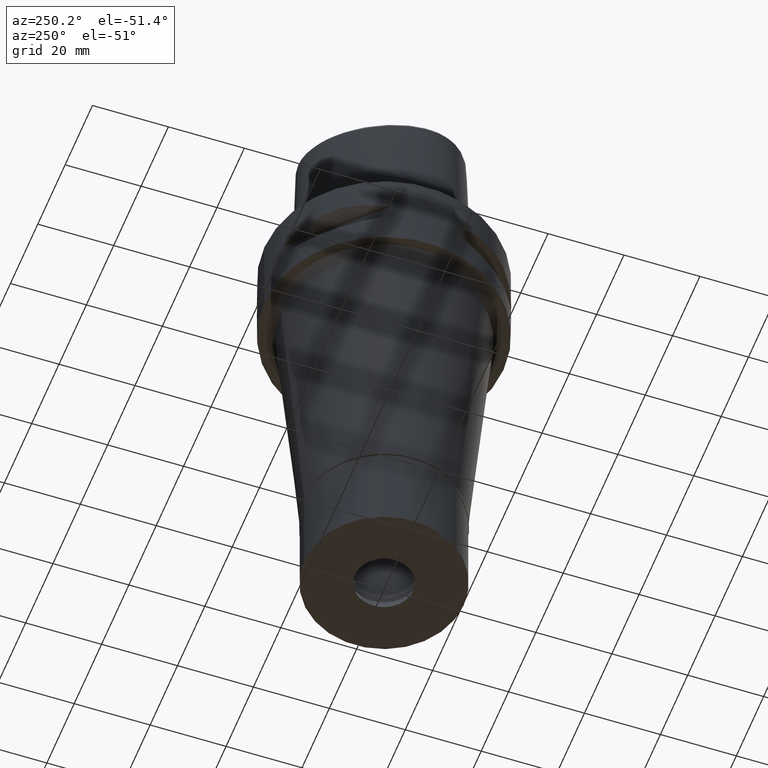
[diagram: clean part render]
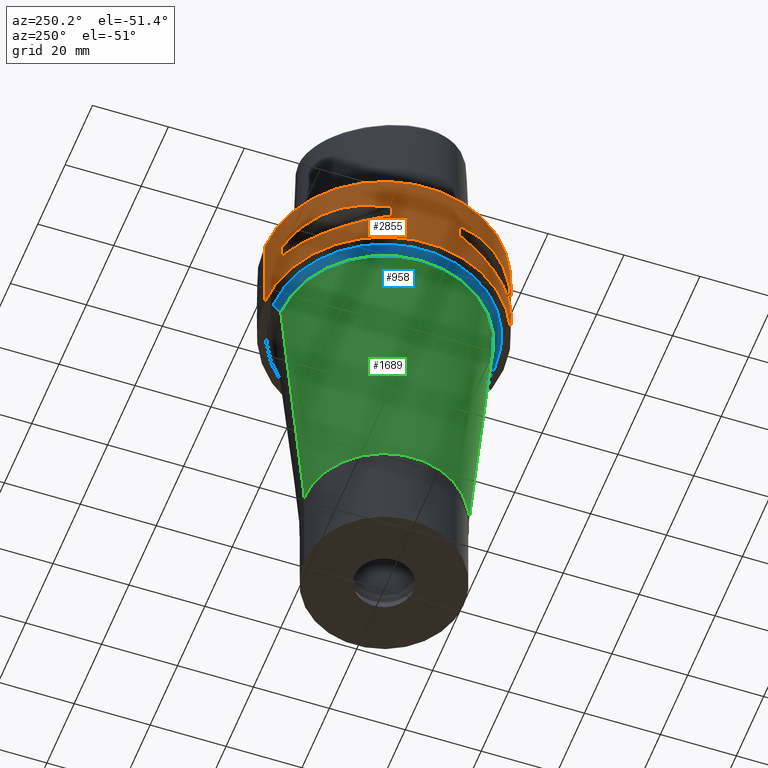
[diagram: same view with three faces highlighted in distinct colors, each labeled with its STEP entity id]
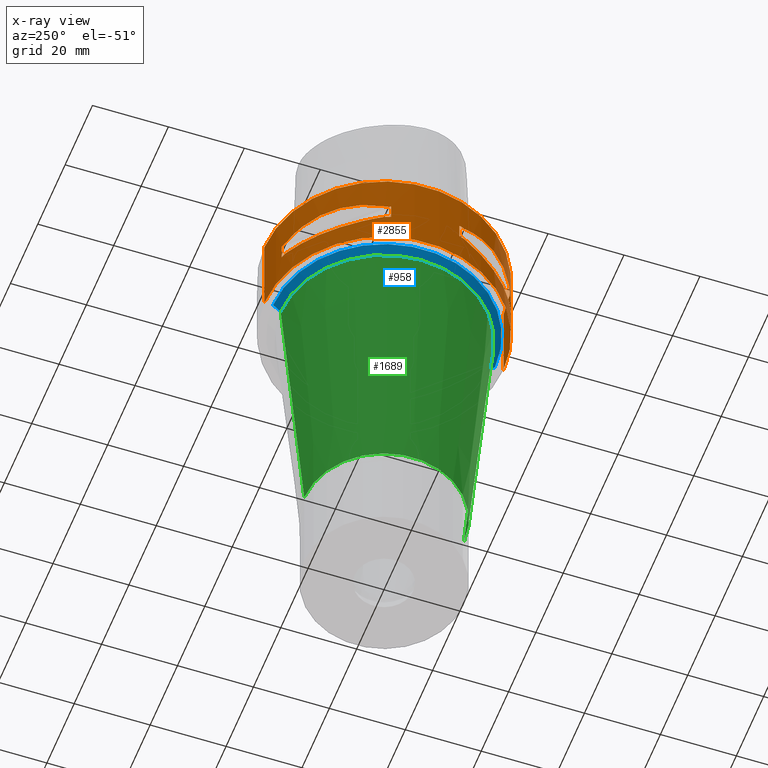
[diagram: x-ray of the same camera — body ghosted, the three highlighted faces saturated]
A machine part, auxiliary view with three faces highlighted in distinct colors.
The next image is the same camera in x-ray (body ghosted, the three faces saturated) — at least one of them is partly hidden behind the body in this view.
Their STEP definitions:

[orange] entity #2855 — the highlighted cylindrical surface (partial cylindrical patch) has radius 31.5 mm, axis along (0, 0, -1).
#7 = CARTESIAN_POINT ( 'NONE',  ( -27.64634172017658642, -15.11986997311774417, -15.11207862404057423 ) ) ;
#46 = AXIS2_PLACEMENT_3D ( 'NONE', #3965, #152, #2873 ) ;
#61 = CARTESIAN_POINT ( 'NONE',  ( -8.981198972019999616, 30.19251670572000279, -9.950000000000001066 ) ) ;
#132 = AXIS2_PLACEMENT_3D ( 'NONE', #688, #1419, #3769 ) ;
#133 = ORIENTED_EDGE ( 'NONE', *, *, #4027, .F. ) ;
#135 = CIRCLE ( 'NONE', #4660, 31.50000000000001776 ) ;
#152 = DIRECTION ( 'NONE',  ( 0.0000000000000000000, 0.0000000000000000000, 1.000000000000000000 ) ) ;
#153 = VERTEX_POINT ( 'NONE', #4197 ) ;
#192 = CIRCLE ( 'NONE', #3004, 31.50000000000000711 ) ;
#242 = CARTESIAN_POINT ( 'NONE',  ( -12.73197616787516040, 28.91382665369138749, -9.345326382460914516 ) ) ;
#256 = EDGE_CURVE ( 'NONE', #4445, #1264, #2350, .T. ) ;
#258 = CARTESIAN_POINT ( 'NONE',  ( -30.19251670572000279, 8.981198972017999438, -14.05000000000000071 ) ) ;
#289 = CARTESIAN_POINT ( 'NONE',  ( -11.58970337495283864, -29.31542262584386904, -9.647706428326454642 ) ) ;
#315 = CARTESIAN_POINT ( 'NONE',  ( -20.65093790437828858, -23.89673728052539659, -8.160641950984063087 ) ) ;
#362 = CARTESIAN_POINT ( 'NONE',  ( -18.86897208075099996, 25.32725744466366891, -15.69588095933659488 ) ) ;
#364 = DIRECTION ( 'NONE',  ( 0.0000000000000000000, 0.0000000000000000000, 1.000000000000000000 ) ) ;
#370 = CARTESIAN_POINT ( 'NONE',  ( -10.44775724750000023, -29.71690375017999841, -9.949999999998999201 ) ) ;
#393 = CARTESIAN_POINT ( 'NONE',  ( -16.86571563436660171, 26.60451452154748608, -15.39949295786010097 ) ) ;
#418 = CARTESIAN_POINT ( 'NONE',  ( -16.03138450078630584, 27.11872488589149199, -15.26880420107739234 ) ) ;
#476 = EDGE_CURVE ( 'NONE', #1857, #3933, #2117, .T. ) ;
#480 = CARTESIAN_POINT ( 'NONE',  ( -16.70616724745912407, 26.70521063584489596, -15.37546661817712490 ) ) ;
#515 = CARTESIAN_POINT ( 'NONE',  ( 0.0000000000000000000, 0.0000000000000000000, -14.05000000000000071 ) ) ;
#537 = DIRECTION ( 'NONE',  ( -0.3316748332540863653, 0.9433937698468619626, 0.0000000000000000000 ) ) ;
#538 = CARTESIAN_POINT ( 'NONE',  ( -14.89252659056261052, -27.86285265926905197, -15.10765629751539230 ) ) ;
#576 = DIRECTION ( 'NONE',  ( 0.0000000000000000000, 0.0000000000000000000, -1.000000000000000000 ) ) ;
#584 = CARTESIAN_POINT ( 'NONE',  ( -26.84474411198721455, 16.48208282229338195, -8.659051162216787390 ) ) ;
#605 = VECTOR ( 'NONE', #3287, 1000.000000000000000 ) ;
#613 = VECTOR ( 'NONE', #1526, 1000.000000000000000 ) ;
#614 = ORIENTED_EDGE ( 'NONE', *, *, #4605, .F. ) ;
#685 = VERTEX_POINT ( 'NONE', #1686 ) ;
#688 = CARTESIAN_POINT ( 'NONE',  ( 0.0000000000000000000, 0.0000000000000000000, 0.0000000000000000000 ) ) ;
#702 = CARTESIAN_POINT ( 'NONE',  ( -16.48208282229338195, -26.84474411198721455, -8.659051162216787390 ) ) ;
#711 = CARTESIAN_POINT ( 'NONE',  ( -20.18579225686149314, -24.23018836745477245, -15.78559396979075125 ) ) ;
#719 = B_SPLINE_CURVE_WITH_KNOTS ( 'NONE', 3,
 ( #370, #289, #1112, #1920, #1141, #702, #2306, #1949, #3054, #3108, #2704, #315, #1537, #3875, #3801, #3408, #4263, #1505, #3035, #5042, #3823, #4186, #728, #5098 ),
 .UNSPECIFIED., .F., .F.,
 ( 4, 1, 1, 1, 1, 1, 2, 2, 2, 1, 1, 1, 1, 1, 2, 2, 4 ),
 ( 0.0000000000000000000, 0.1249999999999937828, 0.1874999999999907296, 0.2187499999999890365, 0.2343749999999882316, 0.2421874999999878431, 0.2460937499999878708, 0.2499999999999878986, 0.4999999999999847899, 0.6249999999999832356, 0.6874999999999825695, 0.7187499999999821254, 0.7343749999999817923, 0.7421874999999815703, 0.7460937499999819034, 0.7499999999999821254, 1.000000000000000000 ),
 .UNSPECIFIED. ) ;
#728 = CARTESIAN_POINT ( 'NONE',  ( -28.91382665369138749, -12.73197616787516040, -9.345326382460914516 ) ) ;
#730 = FACE_BOUND ( 'NONE', #1960, .T. ) ;
#739 = EDGE_LOOP ( 'NONE', ( #4177, #2192, #3481, #1980, #3371, #1665, #3464, #133 ) ) ;
#746 = DIRECTION ( 'NONE',  ( -0.9584925938322735872, -0.2851174276831918153, 0.0000000000000000000 ) ) ;
#762 = EDGE_LOOP ( 'NONE', ( #2632, #5116, #985, #795 ) ) ;
#795 = ORIENTED_EDGE ( 'NONE', *, *, #3547, .T. ) ;
#802 = DIRECTION ( 'NONE',  ( 0.0000000000000000000, 0.0000000000000000000, 1.000000000000000000 ) ) ;
#890 = DIRECTION ( 'NONE',  ( 0.0000000000000000000, 0.0000000000000000000, 1.000000000000000000 ) ) ;
#898 = CARTESIAN_POINT ( 'NONE',  ( -29.71690375017999841, 10.44775724750000023, -14.05000000000000071 ) ) ;
#902 = DIRECTION ( 'NONE',  ( 0.0000000000000000000, 0.0000000000000000000, -1.000000000000000000 ) ) ;
#923 = CARTESIAN_POINT ( 'NONE',  ( -17.14106442934748742, -26.42800887047532754, -15.43984550238493547 ) ) ;
#985 = ORIENTED_EDGE ( 'NONE', *, *, #256, .T. ) ;
#1000 = VERTEX_POINT ( 'NONE', #1585 ) ;
#1004 = VERTEX_POINT ( 'NONE', #61 ) ;
#1007 = EDGE_CURVE ( 'NONE', #4445, #3939, #2779, .T. ) ;
#1048 = CARTESIAN_POINT ( 'NONE',  ( -30.19251670572000279, -8.981198972019999616, -9.950000000000001066 ) ) ;
#1063 = CARTESIAN_POINT ( 'NONE',  ( -21.46242677079834138, 23.08532645887192203, -8.160610089341528095 ) ) ;
#1067 = CARTESIAN_POINT ( 'NONE',  ( -26.64486562695712379, -16.80193241490734835, -15.38992683735741451 ) ) ;
#1112 = CARTESIAN_POINT ( 'NONE',  ( -13.25636937905195722, -28.62019653468352942, -9.251117744580772850 ) ) ;
#1141 = CARTESIAN_POINT ( 'NONE',  ( -16.03138450079000776, -27.11872488589111541, -8.731195798919257456 ) ) ;
#1183 = CARTESIAN_POINT ( 'NONE',  ( -15.11986997310366299, 27.64634172018154246, -15.11207862403683144 ) ) ;
#1213 = CARTESIAN_POINT ( 'NONE',  ( -20.65093790435489396, 23.89673728056195756, -15.83935804901932087 ) ) ;
#1264 = VERTEX_POINT ( 'NONE', #2593 ) ;
#1267 = CARTESIAN_POINT ( 'NONE',  ( -24.23018836745557181, 20.18579225685711265, -15.78559396978928397 ) ) ;
#1281 = CARTESIAN_POINT ( 'NONE',  ( -29.71690375017999841, 10.44775724750000023, -9.949999999998999201 ) ) ;
#1320 = VERTEX_POINT ( 'NONE', #1048 ) ;
#1357 = CIRCLE ( 'NONE', #2183, 31.50000000000000000 ) ;
#1381 = LINE ( 'NONE', #1724, #605 ) ;
#1388 = CARTESIAN_POINT ( 'NONE',  ( 0.0000000000000000000, 0.0000000000000000000, -9.950000000000001066 ) ) ;
#1392 = B_SPLINE_CURVE_WITH_KNOTS ( 'NONE', 3,
 ( #3084, #1984, #3549, #7, #1879, #4608, #5025, #1067, #2657, #4631, #3463, #4212, #2681, #711, #2290, #2090, #4825, #923, #2509, #1707, #4068, #538, #3272, #3632 ),
 .UNSPECIFIED., .F., .F.,
 ( 4, 1, 1, 1, 1, 1, 2, 2, 2, 1, 1, 1, 1, 1, 2, 2, 4 ),
 ( 0.0000000000000000000, 0.1249999999999912292, 0.1874999999999869826, 0.2187499999999850120, 0.2343749999999839295, 0.2421874999999835409, 0.2460937499999835687, 0.2499999999999836242, 0.4999999999999924505, 0.6249999999999968914, 0.6874999999999992228, 0.7187500000000003331, 0.7343750000000009992, 0.7421875000000014433, 0.7460937500000016653, 0.7500000000000019984, 1.000000000000000000 ),
 .UNSPECIFIED. ) ;
#1419 = DIRECTION ( 'NONE',  ( 0.0000000000000000000, 0.0000000000000000000, -1.000000000000000000 ) ) ;
#1437 = CIRCLE ( 'NONE', #4733, 31.50000000000000711 ) ;
#1460 = CARTESIAN_POINT ( 'NONE',  ( -10.44775724750000023, 29.71690375017999841, -9.949999999998999201 ) ) ;
#1481 = FACE_OUTER_BOUND ( 'NONE', #762, .T. ) ;
#1505 = CARTESIAN_POINT ( 'NONE',  ( -26.42800887047403791, -17.14106442935189989, -8.560154497611819124 ) ) ;
#1526 = DIRECTION ( 'NONE',  ( 0.0000000000000000000, 0.0000000000000000000, 1.000000000000000000 ) ) ;
#1537 = CARTESIAN_POINT ( 'NONE',  ( -23.08532645887192203, -21.46242677079834138, -8.160610089341528095 ) ) ;
#1556 = CARTESIAN_POINT ( 'NONE',  ( -26.48642424310478205, 17.05047092244226903, -15.42670883407652305 ) ) ;
#1581 = CARTESIAN_POINT ( 'NONE',  ( -26.29071741523710060, 17.35163608579668804, -15.46976201925415317 ) ) ;
#1585 = CARTESIAN_POINT ( 'NONE',  ( -10.44775724750000023, 29.71690375017999841, -14.05000000000000071 ) ) ;
#1603 = DIRECTION ( 'NONE',  ( -0.9433937698468619626, -0.3316748332540863653, 0.0000000000000000000 ) ) ;
#1640 = CARTESIAN_POINT ( 'NONE',  ( -16.48208282229096611, 26.84474411198699784, -15.34094883778013596 ) ) ;
#1656 = CARTESIAN_POINT ( 'NONE',  ( 0.0000000000000000000, 0.0000000000000000000, -14.05000000000000071 ) ) ;
#1665 = ORIENTED_EDGE ( 'NONE', *, *, #3923, .F. ) ;
#1667 = CARTESIAN_POINT ( 'NONE',  ( -27.86285265926610322, 14.89252659057099493, -15.10765629751760031 ) ) ;
#1684 = VERTEX_POINT ( 'NONE', #2143 ) ;
#1686 = CARTESIAN_POINT ( 'NONE',  ( -10.44775724750000023, -29.71690375017999841, -14.05000000000000071 ) ) ;
#1693 = VERTEX_POINT ( 'NONE', #1758 ) ;
#1700 = AXIS2_PLACEMENT_3D ( 'NONE', #3678, #576, #3310 ) ;
#1707 = CARTESIAN_POINT ( 'NONE',  ( -16.98999780422078132, -26.52527364208593141, -15.41788098766319060 ) ) ;
#1724 = CARTESIAN_POINT ( 'NONE',  ( -8.981198972017999438, 30.19251670572000279, -9.950000000000001066 ) ) ;
#1732 = CARTESIAN_POINT ( 'NONE',  ( 0.0000000000000000000, -31.50000000000000000, -22.00000000000000000 ) ) ;
#1758 = CARTESIAN_POINT ( 'NONE',  ( -29.71690375017999841, -10.44775724750000023, -9.949999999998999201 ) ) ;
#1824 = CARTESIAN_POINT ( 'NONE',  ( -30.19251670572000279, -8.981198972017999438, -14.05000000000000071 ) ) ;
#1826 = DIRECTION ( 'NONE',  ( 0.0000000000000000000, -1.000000000000000000, 0.0000000000000000000 ) ) ;
#1857 = VERTEX_POINT ( 'NONE', #2587 ) ;
#1879 = CARTESIAN_POINT ( 'NONE',  ( -27.11872488588860008, -16.03138450079452682, -15.26880420107959146 ) ) ;
#1920 = CARTESIAN_POINT ( 'NONE',  ( -15.11986997310926206, -27.64634172018019953, -8.887921375959432879 ) ) ;
#1932 = VECTOR ( 'NONE', #4078, 1000.000000000000000 ) ;
#1937 = CARTESIAN_POINT ( 'NONE',  ( -23.08532645888177015, 21.46242677077824368, -15.83938991065229196 ) ) ;
#1949 = CARTESIAN_POINT ( 'NONE',  ( -16.80193241490740874, -26.64486562695828553, -8.610073162640123456 ) ) ;
#1960 = EDGE_LOOP ( 'NONE', ( #4030, #3121, #4711, #614, #4698, #4053, #2323, #3968 ) ) ;
#1980 = ORIENTED_EDGE ( 'NONE', *, *, #4933, .F. ) ;
#1984 = CARTESIAN_POINT ( 'NONE',  ( -29.31542262584164504, -11.58970337495982328, -14.35229357167352049 ) ) ;
#2020 = LINE ( 'NONE', #2517, #1932 ) ;
#2021 = CARTESIAN_POINT ( 'NONE',  ( -10.44775724750000023, 29.71690375017999841, -14.05000000000000071 ) ) ;
#2022 = CIRCLE ( 'NONE', #1700, 31.50000000000001776 ) ;
#2053 = CARTESIAN_POINT ( 'NONE',  ( -10.44775724750000023, -29.71690375017999841, -9.949999999998999201 ) ) ;
#2056 = DIRECTION ( 'NONE',  ( -0.3316748332540863653, -0.9433937698468619626, 0.0000000000000000000 ) ) ;
#2090 = CARTESIAN_POINT ( 'NONE',  ( -17.76952662671988392, -26.01217882834739470, -15.52665221626113912 ) ) ;
#2117 = CIRCLE ( 'NONE', #4985, 31.50000000000000711 ) ;
#2130 = DIRECTION ( 'NONE',  ( 0.0000000000000000000, 0.0000000000000000000, 1.000000000000000000 ) ) ;
#2141 = B_SPLINE_CURVE_WITH_KNOTS ( 'NONE', 3,
 ( #2021, #3921, #2803, #1183, #418, #1640, #480, #3587, #393, #3207, #362, #1213, #1937, #1267, #5119, #3890, #1581, #4785, #1556, #4389, #3124, #1667, #2772, #4335 ),
 .UNSPECIFIED., .F., .F.,
 ( 4, 1, 1, 1, 1, 1, 2, 2, 2, 1, 1, 1, 1, 1, 2, 2, 4 ),
 ( 0.0000000000000000000, 0.1249999999999917843, 0.1874999999999877320, 0.2187499999999857059, 0.2343749999999849287, 0.2421874999999843736, 0.2460937499999842071, 0.2499999999999840128, 0.4999999999999846789, 0.6249999999999850120, 0.6874999999999850120, 0.7187499999999851230, 0.7343749999999852340, 0.7421874999999852340, 0.7460937499999851230, 0.7499999999999851230, 1.000000000000000000 ),
 .UNSPECIFIED. ) ;
#2143 = CARTESIAN_POINT ( 'NONE',  ( -30.19251670572000279, 8.981198972019999616, -14.05000000000000071 ) ) ;
#2148 = CARTESIAN_POINT ( 'NONE',  ( -10.44775724750000023, 29.71690375017999841, -9.949999999998999201 ) ) ;
#2166 = CARTESIAN_POINT ( 'NONE',  ( -26.70521063584543597, 16.70616724746083648, -8.624533381819961875 ) ) ;
#2183 = AXIS2_PLACEMENT_3D ( 'NONE', #4305, #364, #2300 ) ;
#2189 = CARTESIAN_POINT ( 'NONE',  ( -26.60451452154827479, 16.86571563436777410, -8.600507042137108371 ) ) ;
#2192 = ORIENTED_EDGE ( 'NONE', *, *, #2643, .F. ) ;
#2197 = VECTOR ( 'NONE', #4307, 1000.000000000000000 ) ;
#2259 = CARTESIAN_POINT ( 'NONE',  ( -17.76952662673343397, 26.01217882834028217, -8.473347783734256566 ) ) ;
#2290 = CARTESIAN_POINT ( 'NONE',  ( -18.59229662065117594, -25.43927894891756125, -15.62866126334438732 ) ) ;
#2300 = DIRECTION ( 'NONE',  ( 0.0000000000000000000, 1.000000000000000000, 0.0000000000000000000 ) ) ;
#2306 = CARTESIAN_POINT ( 'NONE',  ( -16.70616724746083648, -26.70521063584543597, -8.624533381819961875 ) ) ;
#2310 = CARTESIAN_POINT ( 'NONE',  ( 0.0000000000000000000, 0.0000000000000000000, 5.625000000000000000 ) ) ;
#2323 = ORIENTED_EDGE ( 'NONE', *, *, #3844, .T. ) ;
#2350 = CIRCLE ( 'NONE', #132, 31.50000000000000000 ) ;
#2404 = CARTESIAN_POINT ( 'NONE',  ( 0.0000000000000000000, 0.0000000000000000000, -14.05000000000000071 ) ) ;
#2405 = CARTESIAN_POINT ( 'NONE',  ( -29.31542262584386904, 11.58970337495283864, -9.647706428326454642 ) ) ;
#2413 = EDGE_CURVE ( 'NONE', #1004, #3097, #1381, .T. ) ;
#2436 = AXIS2_PLACEMENT_3D ( 'NONE', #2748, #802, #746 ) ;
#2485 = CARTESIAN_POINT ( 'NONE',  ( -30.19251670572000279, 8.981198972017999438, -9.950000000000001066 ) ) ;
#2509 = CARTESIAN_POINT ( 'NONE',  ( -17.05047092244258522, -26.48642424310472876, -15.42670883407663496 ) ) ;
#2517 = CARTESIAN_POINT ( 'NONE',  ( 0.0000000000000000000, 31.50000000000000000, 0.0000000000000000000 ) ) ;
#2536 = DIRECTION ( 'NONE',  ( 0.0000000000000000000, 0.0000000000000000000, -1.000000000000000000 ) ) ;
#2537 = VERTEX_POINT ( 'NONE', #898 ) ;
#2553 = VERTEX_POINT ( 'NONE', #1281 ) ;
#2587 = CARTESIAN_POINT ( 'NONE',  ( -29.71690375017999841, -10.44775724750000023, -14.05000000000000071 ) ) ;
#2593 = CARTESIAN_POINT ( 'NONE',  ( 0.0000000000000000000, 31.50000000000000000, 0.0000000000000000000 ) ) ;
#2632 = ORIENTED_EDGE ( 'NONE', *, *, #3631, .T. ) ;
#2643 = EDGE_CURVE ( 'NONE', #3719, #153, #3618, .T. ) ;
#2657 = CARTESIAN_POINT ( 'NONE',  ( -26.60451452154724805, -16.86571563436727317, -15.39949295786030348 ) ) ;
#2678 = CARTESIAN_POINT ( 'NONE',  ( -18.59229662067374633, 25.43927894890470753, -8.371338736649670764 ) ) ;
#2681 = CARTESIAN_POINT ( 'NONE',  ( -21.46242677078074834, -23.08532645888130830, -15.83938991065315172 ) ) ;
#2704 = CARTESIAN_POINT ( 'NONE',  ( -18.86897208071351528, -25.32725744468778117, -8.304119040666874341 ) ) ;
#2706 = FACE_BOUND ( 'NONE', #739, .T. ) ;
#2730 = EDGE_CURVE ( 'NONE', #2553, #3551, #3659, .T. ) ;
#2748 = CARTESIAN_POINT ( 'NONE',  ( 0.0000000000000000000, 0.0000000000000000000, -9.950000000000001066 ) ) ;
#2766 = CIRCLE ( 'NONE', #4076, 31.50000000000001776 ) ;
#2772 = CARTESIAN_POINT ( 'NONE',  ( -28.91382665368951876, 12.73197616788052500, -14.65467361753852060 ) ) ;
#2779 = LINE ( 'NONE', #4340, #2197 ) ;
#2803 = CARTESIAN_POINT ( 'NONE',  ( -13.25636937904505785, 28.62019653468586355, -14.74888225541535292 ) ) ;
#2855 = ADVANCED_FACE ( 'NONE', ( #1481, #730, #2706 ), #4266, .T. ) ;
#2873 = DIRECTION ( 'NONE',  ( -0.9433937698468619626, 0.3316748332540863653, 0.0000000000000000000 ) ) ;
#2893 = DIRECTION ( 'NONE',  ( -0.2851174276831918153, -0.9584925938322735872, 0.0000000000000000000 ) ) ;
#2917 = CARTESIAN_POINT ( 'NONE',  ( -8.981198972019999616, -30.19251670572000279, -14.05000000000000071 ) ) ;
#2968 = LINE ( 'NONE', #2989, #4901 ) ;
#2989 = CARTESIAN_POINT ( 'NONE',  ( -30.19251670572000279, -8.981198972017999438, -9.950000000000001066 ) ) ;
#3004 = AXIS2_PLACEMENT_3D ( 'NONE', #3646, #2130, #2056 ) ;
#3013 = DIRECTION ( 'NONE',  ( 0.0000000000000000000, 0.0000000000000000000, -1.000000000000000000 ) ) ;
#3035 = CARTESIAN_POINT ( 'NONE',  ( -26.48642424310436638, -17.05047092244551621, -8.573291165920331025 ) ) ;
#3036 = CARTESIAN_POINT ( 'NONE',  ( -16.96123479565030934, 26.54368690921734952, -8.586344276584055635 ) ) ;
#3054 = CARTESIAN_POINT ( 'NONE',  ( -16.86571563436777410, -26.60451452154827479, -8.600507042137108371 ) ) ;
#3084 = CARTESIAN_POINT ( 'NONE',  ( -29.71690375017999841, -10.44775724750000023, -14.05000000000000071 ) ) ;
#3097 = VERTEX_POINT ( 'NONE', #3233 ) ;
#3108 = CARTESIAN_POINT ( 'NONE',  ( -16.89910283486678821, -26.58330558444515290, -8.595535286924912199 ) ) ;
#3121 = ORIENTED_EDGE ( 'NONE', *, *, #4403, .F. ) ;
#3124 = CARTESIAN_POINT ( 'NONE',  ( -26.54368690921645069, 16.96123479564930747, -15.41365572341317147 ) ) ;
#3204 = DIRECTION ( 'NONE',  ( 0.0000000000000000000, 0.0000000000000000000, -1.000000000000000000 ) ) ;
#3207 = CARTESIAN_POINT ( 'NONE',  ( -16.89910283486523923, 26.58330558444462355, -15.40446471307224741 ) ) ;
#3233 = CARTESIAN_POINT ( 'NONE',  ( -8.981198972017999438, 30.19251670572000279, -14.05000000000000071 ) ) ;
#3237 = EDGE_CURVE ( 'NONE', #4662, #153, #192, .T. ) ;
#3272 = CARTESIAN_POINT ( 'NONE',  ( -12.73197616787212993, -28.91382665369246752, -14.65467361753630549 ) ) ;
#3287 = DIRECTION ( 'NONE',  ( 0.0000000000000000000, 0.0000000000000000000, -1.000000000000000000 ) ) ;
#3295 = DIRECTION ( 'NONE',  ( 0.0000000000000000000, 0.0000000000000000000, 1.000000000000000000 ) ) ;
#3310 = DIRECTION ( 'NONE',  ( -0.9584925938322735872, 0.2851174276831918153, 0.0000000000000000000 ) ) ;
#3344 = DIRECTION ( 'NONE',  ( 0.0000000000000000000, 0.0000000000000000000, -1.000000000000000000 ) ) ;
#3367 = DIRECTION ( 'NONE',  ( -0.2851174276831918153, 0.9584925938322735872, 0.0000000000000000000 ) ) ;
#3369 = CARTESIAN_POINT ( 'NONE',  ( -16.98999780422272110, 26.52527364208619431, -8.582119012333926378 ) ) ;
#3371 = ORIENTED_EDGE ( 'NONE', *, *, #476, .T. ) ;
#3400 = LINE ( 'NONE', #258, #613 ) ;
#3408 = CARTESIAN_POINT ( 'NONE',  ( -26.01217882834028217, -17.76952662673343397, -8.473347783734256566 ) ) ;
#3411 = CARTESIAN_POINT ( 'NONE',  ( -17.05047092244551621, 26.48642424310436638, -8.573291165920331025 ) ) ;
#3463 = CARTESIAN_POINT ( 'NONE',  ( -25.32725744465475515, -18.86897208075581034, -15.69588095933493932 ) ) ;
#3464 = ORIENTED_EDGE ( 'NONE', *, *, #3617, .T. ) ;
#3481 = ORIENTED_EDGE ( 'NONE', *, *, #5001, .T. ) ;
#3547 = EDGE_CURVE ( 'NONE', #1264, #3942, #2020, .T. ) ;
#3549 = CARTESIAN_POINT ( 'NONE',  ( -28.62019653467925551, -13.25636937906381974, -14.74888225542034448 ) ) ;
#3551 = VERTEX_POINT ( 'NONE', #2148 ) ;
#3587 = CARTESIAN_POINT ( 'NONE',  ( -16.80193241490601253, 26.64486562695759631, -15.38992683735703437 ) ) ;
#3617 = EDGE_CURVE ( 'NONE', #1320, #1693, #3742, .T. ) ;
#3618 = LINE ( 'NONE', #4390, #4219 ) ;
#3631 = EDGE_CURVE ( 'NONE', #3942, #3939, #1357, .T. ) ;
#3632 = CARTESIAN_POINT ( 'NONE',  ( -10.44775724750000023, -29.71690375017999841, -14.05000000000000071 ) ) ;
#3644 = EDGE_CURVE ( 'NONE', #1000, #3097, #1437, .T. ) ;
#3646 = CARTESIAN_POINT ( 'NONE',  ( 0.0000000000000000000, 0.0000000000000000000, -9.950000000000001066 ) ) ;
#3659 = B_SPLINE_CURVE_WITH_KNOTS ( 'NONE', 3,
 ( #4483, #2405, #4097, #4119, #4048, #584, #2166, #4927, #2189, #3784, #3853, #4604, #1063, #5044, #2678, #2259, #4554, #4209, #3411, #3369, #3036, #4995, #242, #1460 ),
 .UNSPECIFIED., .F., .F.,
 ( 4, 1, 1, 1, 1, 1, 2, 2, 2, 1, 1, 1, 1, 1, 2, 2, 4 ),
 ( 0.0000000000000000000, 0.1249999999999937828, 0.1874999999999907296, 0.2187499999999890365, 0.2343749999999882316, 0.2421874999999878431, 0.2460937499999878708, 0.2499999999999878986, 0.4999999999999847899, 0.6249999999999832356, 0.6874999999999825695, 0.7187499999999821254, 0.7343749999999817923, 0.7421874999999815703, 0.7460937499999819034, 0.7499999999999821254, 1.000000000000000000 ),
 .UNSPECIFIED. ) ;
#3678 = CARTESIAN_POINT ( 'NONE',  ( 0.0000000000000000000, 0.0000000000000000000, -14.05000000000000071 ) ) ;
#3719 = VERTEX_POINT ( 'NONE', #2917 ) ;
#3742 = CIRCLE ( 'NONE', #2436, 31.50000000000001776 ) ;
#3756 = CIRCLE ( 'NONE', #46, 31.50000000000000711 ) ;
#3769 = DIRECTION ( 'NONE',  ( 0.0000000000000000000, -1.000000000000000000, 0.0000000000000000000 ) ) ;
#3784 = CARTESIAN_POINT ( 'NONE',  ( -26.58330558444515290, 16.89910283486678821, -8.595535286924912199 ) ) ;
#3795 = CARTESIAN_POINT ( 'NONE',  ( 0.0000000000000000000, -31.50000000000000000, 0.0000000000000000000 ) ) ;
#3801 = CARTESIAN_POINT ( 'NONE',  ( -25.43927894890470753, -18.59229662067374633, -8.371338736649670764 ) ) ;
#3813 = AXIS2_PLACEMENT_3D ( 'NONE', #2310, #3013, #1826 ) ;
#3823 = CARTESIAN_POINT ( 'NONE',  ( -26.54368690921734952, -16.96123479565030934, -8.586344276584055635 ) ) ;
#3844 = EDGE_CURVE ( 'NONE', #1004, #3551, #2766, .T. ) ;
#3853 = CARTESIAN_POINT ( 'NONE',  ( -25.32725744468778117, 18.86897208071351528, -8.304119040666874341 ) ) ;
#3875 = CARTESIAN_POINT ( 'NONE',  ( -24.23018836743738191, -20.18579225689131817, -8.214406030202187736 ) ) ;
#3890 = CARTESIAN_POINT ( 'NONE',  ( -26.01217882834774997, 17.76952662671796901, -15.52665221626049608 ) ) ;
#3921 = CARTESIAN_POINT ( 'NONE',  ( -11.58970337494912251, 29.31542262584540737, -14.35229357167066233 ) ) ;
#3923 = EDGE_CURVE ( 'NONE', #1320, #3933, #2968, .T. ) ;
#3933 = VERTEX_POINT ( 'NONE', #1824 ) ;
#3939 = VERTEX_POINT ( 'NONE', #1732 ) ;
#3942 = VERTEX_POINT ( 'NONE', #4875 ) ;
#3965 = CARTESIAN_POINT ( 'NONE',  ( 0.0000000000000000000, 0.0000000000000000000, -9.950000000000001066 ) ) ;
#3968 = ORIENTED_EDGE ( 'NONE', *, *, #2730, .F. ) ;
#4027 = EDGE_CURVE ( 'NONE', #4662, #1693, #719, .T. ) ;
#4030 = ORIENTED_EDGE ( 'NONE', *, *, #4981, .T. ) ;
#4048 = CARTESIAN_POINT ( 'NONE',  ( -27.11872488589111541, 16.03138450079000776, -8.731195798919257456 ) ) ;
#4053 = ORIENTED_EDGE ( 'NONE', *, *, #2413, .F. ) ;
#4068 = CARTESIAN_POINT ( 'NONE',  ( -16.96123479564944247, -26.54368690921640450, -15.41365572341321766 ) ) ;
#4076 = AXIS2_PLACEMENT_3D ( 'NONE', #1388, #3295, #3367 ) ;
#4078 = DIRECTION ( 'NONE',  ( 0.0000000000000000000, 0.0000000000000000000, -1.000000000000000000 ) ) ;
#4097 = CARTESIAN_POINT ( 'NONE',  ( -28.62019653468352942, 13.25636937905195722, -9.251117744580772850 ) ) ;
#4119 = CARTESIAN_POINT ( 'NONE',  ( -27.64634172018019953, 15.11986997310926206, -8.887921375959432879 ) ) ;
#4177 = ORIENTED_EDGE ( 'NONE', *, *, #3237, .T. ) ;
#4186 = CARTESIAN_POINT ( 'NONE',  ( -27.86285265926838051, -14.89252659056605488, -8.892343702481497303 ) ) ;
#4191 = EDGE_CURVE ( 'NONE', #1684, #2537, #2022, .T. ) ;
#4197 = CARTESIAN_POINT ( 'NONE',  ( -8.981198972017999438, -30.19251670572000279, -9.950000000000001066 ) ) ;
#4209 = CARTESIAN_POINT ( 'NONE',  ( -17.14106442935189989, 26.42800887047403791, -8.560154497611819124 ) ) ;
#4212 = CARTESIAN_POINT ( 'NONE',  ( -23.89673728055697310, -20.65093790435582122, -15.83935804901768307 ) ) ;
#4219 = VECTOR ( 'NONE', #890, 1000.000000000000000 ) ;
#4263 = CARTESIAN_POINT ( 'NONE',  ( -26.29071741523354078, -17.35163608580538863, -8.530237980741757653 ) ) ;
#4266 = CYLINDRICAL_SURFACE ( 'NONE', #3813, 31.50000000000000000 ) ;
#4305 = CARTESIAN_POINT ( 'NONE',  ( 0.0000000000000000000, 0.0000000000000000000, -22.00000000000000000 ) ) ;
#4307 = DIRECTION ( 'NONE',  ( 0.0000000000000000000, 0.0000000000000000000, -1.000000000000000000 ) ) ;
#4335 = CARTESIAN_POINT ( 'NONE',  ( -29.71690375017999841, 10.44775724750000023, -14.05000000000000071 ) ) ;
#4340 = CARTESIAN_POINT ( 'NONE',  ( 0.0000000000000000000, -31.50000000000000000, 0.0000000000000000000 ) ) ;
#4389 = CARTESIAN_POINT ( 'NONE',  ( -26.52527364208594562, 16.98999780422062500, -15.41788098766312487 ) ) ;
#4390 = CARTESIAN_POINT ( 'NONE',  ( -8.981198972017999438, -30.19251670572000279, -14.05000000000000071 ) ) ;
#4403 = EDGE_CURVE ( 'NONE', #1684, #5009, #3400, .T. ) ;
#4445 = VERTEX_POINT ( 'NONE', #3795 ) ;
#4483 = CARTESIAN_POINT ( 'NONE',  ( -29.71690375017999841, 10.44775724750000023, -9.949999999998999201 ) ) ;
#4554 = CARTESIAN_POINT ( 'NONE',  ( -17.35163608580538863, 26.29071741523354078, -8.530237980741757653 ) ) ;
#4604 = CARTESIAN_POINT ( 'NONE',  ( -23.89673728052539659, 20.65093790437828858, -8.160641950984063087 ) ) ;
#4605 = EDGE_CURVE ( 'NONE', #1000, #2537, #2141, .T. ) ;
#4608 = CARTESIAN_POINT ( 'NONE',  ( -26.84474411198545596, -16.48208282229538213, -15.34094883778132790 ) ) ;
#4631 = CARTESIAN_POINT ( 'NONE',  ( -26.58330558444475145, -16.89910283486517528, -15.40446471307230070 ) ) ;
#4660 = AXIS2_PLACEMENT_3D ( 'NONE', #515, #902, #2893 ) ;
#4662 = VERTEX_POINT ( 'NONE', #2053 ) ;
#4698 = ORIENTED_EDGE ( 'NONE', *, *, #3644, .T. ) ;
#4711 = ORIENTED_EDGE ( 'NONE', *, *, #4191, .T. ) ;
#4733 = AXIS2_PLACEMENT_3D ( 'NONE', #1656, #3344, #537 ) ;
#4785 = CARTESIAN_POINT ( 'NONE',  ( -26.42800887047543767, 17.14106442934696162, -15.43984550238475251 ) ) ;
#4825 = CARTESIAN_POINT ( 'NONE',  ( -17.35163608579770766, -26.29071741523690875, -15.46976201925451022 ) ) ;
#4875 = CARTESIAN_POINT ( 'NONE',  ( 0.0000000000000000000, 31.50000000000000000, -22.00000000000000000 ) ) ;
#4901 = VECTOR ( 'NONE', #2536, 1000.000000000000000 ) ;
#4927 = CARTESIAN_POINT ( 'NONE',  ( -26.64486562695828553, 16.80193241490740874, -8.610073162640123456 ) ) ;
#4933 = EDGE_CURVE ( 'NONE', #1857, #685, #1392, .T. ) ;
#4981 = EDGE_CURVE ( 'NONE', #2553, #5009, #3756, .T. ) ;
#4985 = AXIS2_PLACEMENT_3D ( 'NONE', #2404, #3204, #1603 ) ;
#4995 = CARTESIAN_POINT ( 'NONE',  ( -14.89252659056605488, 27.86285265926838051, -8.892343702481497303 ) ) ;
#5001 = EDGE_CURVE ( 'NONE', #3719, #685, #135, .T. ) ;
#5009 = VERTEX_POINT ( 'NONE', #2485 ) ;
#5025 = CARTESIAN_POINT ( 'NONE',  ( -26.70521063584408950, -16.70616724746141202, -15.37546661817775373 ) ) ;
#5042 = CARTESIAN_POINT ( 'NONE',  ( -26.52527364208619431, -16.98999780422272110, -8.582119012333926378 ) ) ;
#5044 = CARTESIAN_POINT ( 'NONE',  ( -20.18579225689131817, 24.23018836743738191, -8.214406030202187736 ) ) ;
#5098 = CARTESIAN_POINT ( 'NONE',  ( -29.71690375017999841, -10.44775724750000023, -9.949999999998999201 ) ) ;
#5116 = ORIENTED_EDGE ( 'NONE', *, *, #1007, .F. ) ;
#5119 = CARTESIAN_POINT ( 'NONE',  ( -25.43927894891815811, 18.59229662064788258, -15.62866126334327710 ) ) ;

[blue] entity #958 — the highlighted conical surface has half-angle 45 deg.
#50 = CARTESIAN_POINT ( 'NONE',  ( 0.0000000000000000000, -29.20294624398999872, -22.00000000000000000 ) ) ;
#158 = ORIENTED_EDGE ( 'NONE', *, *, #413, .F. ) ;
#413 = EDGE_CURVE ( 'NONE', #1578, #4929, #4357, .T. ) ;
#437 = EDGE_LOOP ( 'NONE', ( #1884, #158, #3766, #1830 ) ) ;
#442 = DIRECTION ( 'NONE',  ( 0.0000000000000000000, 0.7071067811870975772, -0.7071067811859975683 ) ) ;
#466 = VECTOR ( 'NONE', #442, 1000.000000000000000 ) ;
#470 = CIRCLE ( 'NONE', #2775, 27.20294624398999872 ) ;
#958 = ADVANCED_FACE ( 'NONE', ( #4815 ), #4993, .T. ) ;
#979 = EDGE_CURVE ( 'NONE', #4929, #4144, #470, .T. ) ;
#1271 = CARTESIAN_POINT ( 'NONE',  ( 0.0000000000000000000, 0.0000000000000000000, -24.00000000000000000 ) ) ;
#1304 = CARTESIAN_POINT ( 'NONE',  ( 0.0000000000000000000, 0.0000000000000000000, -22.00000000000000000 ) ) ;
#1360 = AXIS2_PLACEMENT_3D ( 'NONE', #1304, #3289, #4869 ) ;
#1439 = CIRCLE ( 'NONE', #1360, 29.20294624398999872 ) ;
#1578 = VERTEX_POINT ( 'NONE', #4413 ) ;
#1645 = DIRECTION ( 'NONE',  ( 0.0000000000000000000, 0.0000000000000000000, 1.000000000000000000 ) ) ;
#1810 = VERTEX_POINT ( 'NONE', #4949 ) ;
#1830 = ORIENTED_EDGE ( 'NONE', *, *, #4642, .T. ) ;
#1884 = ORIENTED_EDGE ( 'NONE', *, *, #979, .F. ) ;
#2573 = DIRECTION ( 'NONE',  ( 0.0000000000000000000, -1.000000000000000000, 0.0000000000000000000 ) ) ;
#2775 = AXIS2_PLACEMENT_3D ( 'NONE', #1271, #3151, #2573 ) ;
#3151 = DIRECTION ( 'NONE',  ( 0.0000000000000000000, 0.0000000000000000000, -1.000000000000000000 ) ) ;
#3289 = DIRECTION ( 'NONE',  ( 0.0000000000000000000, 0.0000000000000000000, -1.000000000000000000 ) ) ;
#3512 = DIRECTION ( 'NONE',  ( 0.0000000000000000000, -0.7071067811870975772, -0.7071067811859975683 ) ) ;
#3594 = CARTESIAN_POINT ( 'NONE',  ( 0.0000000000000000000, 0.0000000000000000000, -23.00000000000000000 ) ) ;
#3766 = ORIENTED_EDGE ( 'NONE', *, *, #4332, .T. ) ;
#3821 = VECTOR ( 'NONE', #3512, 1000.000000000000000 ) ;
#3856 = CARTESIAN_POINT ( 'NONE',  ( 0.0000000000000000000, -27.20294624398999872, -24.00000000000000000 ) ) ;
#4003 = LINE ( 'NONE', #4758, #3821 ) ;
#4131 = CARTESIAN_POINT ( 'NONE',  ( 0.0000000000000000000, 27.20294624398999872, -24.00000000000000000 ) ) ;
#4144 = VERTEX_POINT ( 'NONE', #4131 ) ;
#4332 = EDGE_CURVE ( 'NONE', #1578, #1810, #1439, .T. ) ;
#4357 = LINE ( 'NONE', #50, #466 ) ;
#4413 = CARTESIAN_POINT ( 'NONE',  ( 0.0000000000000000000, -29.20294624398999872, -22.00000000000000000 ) ) ;
#4642 = EDGE_CURVE ( 'NONE', #1810, #4144, #4003, .T. ) ;
#4658 = AXIS2_PLACEMENT_3D ( 'NONE', #3594, #1645, #4790 ) ;
#4758 = CARTESIAN_POINT ( 'NONE',  ( 0.0000000000000000000, 29.20294624398999872, -22.00000000000000000 ) ) ;
#4790 = DIRECTION ( 'NONE',  ( 0.0000000000000000000, 1.000000000000000000, 0.0000000000000000000 ) ) ;
#4815 = FACE_OUTER_BOUND ( 'NONE', #437, .T. ) ;
#4869 = DIRECTION ( 'NONE',  ( 0.0000000000000000000, -1.000000000000000000, 0.0000000000000000000 ) ) ;
#4929 = VERTEX_POINT ( 'NONE', #3856 ) ;
#4949 = CARTESIAN_POINT ( 'NONE',  ( 0.0000000000000000000, 29.20294624398999872, -22.00000000000000000 ) ) ;
#4993 = CONICAL_SURFACE ( 'NONE', #4658, 28.20294624398999872, 0.7853981633972997312 ) ;

[green] entity #1689 — the highlighted conical surface has half-angle 5 deg.
#105 = ORIENTED_EDGE ( 'NONE', *, *, #5012, .F. ) ;
#123 = LINE ( 'NONE', #4045, #1622 ) ;
#268 = DIRECTION ( 'NONE',  ( 0.0000000000000000000, 0.0000000000000000000, 1.000000000000000000 ) ) ;
#470 = CIRCLE ( 'NONE', #2775, 27.20294624398999872 ) ;
#597 = CARTESIAN_POINT ( 'NONE',  ( 0.0000000000000000000, 21.00000000000000000, -94.89999999999999147 ) ) ;
#639 = EDGE_CURVE ( 'NONE', #4144, #2315, #1340, .T. ) ;
#661 = EDGE_LOOP ( 'NONE', ( #1311, #105, #3762, #2745 ) ) ;
#884 = DIRECTION ( 'NONE',  ( 0.0000000000000000000, -0.08715574274768382590, -0.9961946980917432137 ) ) ;
#979 = EDGE_CURVE ( 'NONE', #4929, #4144, #470, .T. ) ;
#1271 = CARTESIAN_POINT ( 'NONE',  ( 0.0000000000000000000, 0.0000000000000000000, -24.00000000000000000 ) ) ;
#1311 = ORIENTED_EDGE ( 'NONE', *, *, #4142, .T. ) ;
#1312 = DIRECTION ( 'NONE',  ( 0.0000000000000000000, 0.08715574274768382590, -0.9961946980917432137 ) ) ;
#1340 = LINE ( 'NONE', #2169, #4421 ) ;
#1362 = FACE_OUTER_BOUND ( 'NONE', #661, .T. ) ;
#1622 = VECTOR ( 'NONE', #1312, 1000.000000000000227 ) ;
#1689 = ADVANCED_FACE ( 'NONE', ( #1362 ), #5080, .T. ) ;
#1779 = CIRCLE ( 'NONE', #3012, 21.00000000000000000 ) ;
#1849 = CARTESIAN_POINT ( 'NONE',  ( 0.0000000000000000000, 0.0000000000000000000, -59.45000000000000284 ) ) ;
#2169 = CARTESIAN_POINT ( 'NONE',  ( 0.0000000000000000000, 27.20294624398999872, -24.00000000000000000 ) ) ;
#2315 = VERTEX_POINT ( 'NONE', #597 ) ;
#2573 = DIRECTION ( 'NONE',  ( 0.0000000000000000000, -1.000000000000000000, 0.0000000000000000000 ) ) ;
#2634 = DIRECTION ( 'NONE',  ( 0.0000000000000000000, 1.000000000000000000, 0.0000000000000000000 ) ) ;
#2673 = DIRECTION ( 'NONE',  ( 0.0000000000000000000, 0.0000000000000000000, 1.000000000000000000 ) ) ;
#2745 = ORIENTED_EDGE ( 'NONE', *, *, #639, .T. ) ;
#2775 = AXIS2_PLACEMENT_3D ( 'NONE', #1271, #3151, #2573 ) ;
#2870 = AXIS2_PLACEMENT_3D ( 'NONE', #1849, #268, #2634 ) ;
#3012 = AXIS2_PLACEMENT_3D ( 'NONE', #4626, #2673, #4228 ) ;
#3151 = DIRECTION ( 'NONE',  ( 0.0000000000000000000, 0.0000000000000000000, -1.000000000000000000 ) ) ;
#3762 = ORIENTED_EDGE ( 'NONE', *, *, #979, .T. ) ;
#3856 = CARTESIAN_POINT ( 'NONE',  ( 0.0000000000000000000, -27.20294624398999872, -24.00000000000000000 ) ) ;
#4045 = CARTESIAN_POINT ( 'NONE',  ( 0.0000000000000000000, -27.20294624398999872, -24.00000000000000000 ) ) ;
#4131 = CARTESIAN_POINT ( 'NONE',  ( 0.0000000000000000000, 27.20294624398999872, -24.00000000000000000 ) ) ;
#4142 = EDGE_CURVE ( 'NONE', #2315, #4465, #1779, .T. ) ;
#4144 = VERTEX_POINT ( 'NONE', #4131 ) ;
#4228 = DIRECTION ( 'NONE',  ( 0.0000000000000000000, 1.000000000000000000, 0.0000000000000000000 ) ) ;
#4421 = VECTOR ( 'NONE', #884, 1000.000000000000227 ) ;
#4465 = VERTEX_POINT ( 'NONE', #4960 ) ;
#4626 = CARTESIAN_POINT ( 'NONE',  ( 0.0000000000000000000, 0.0000000000000000000, -94.89999999999999147 ) ) ;
#4929 = VERTEX_POINT ( 'NONE', #3856 ) ;
#4960 = CARTESIAN_POINT ( 'NONE',  ( 0.0000000000000000000, -21.00000000000000000, -94.89999999999999147 ) ) ;
#5012 = EDGE_CURVE ( 'NONE', #4929, #4465, #123, .T. ) ;
#5080 = CONICAL_SURFACE ( 'NONE', #2870, 24.10147312199000069, 0.08726646259969973729 ) ;